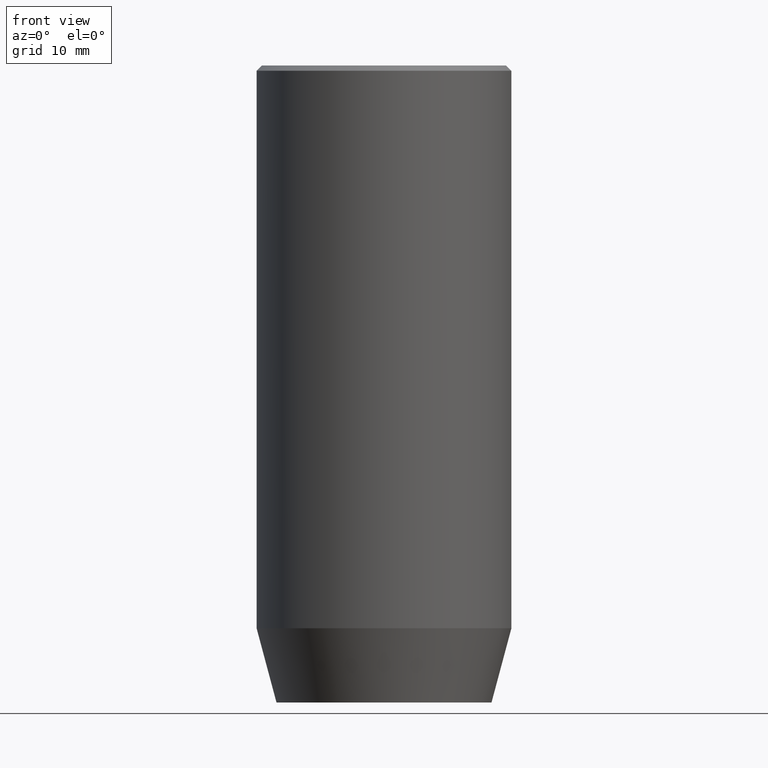
[diagram: clean part render]
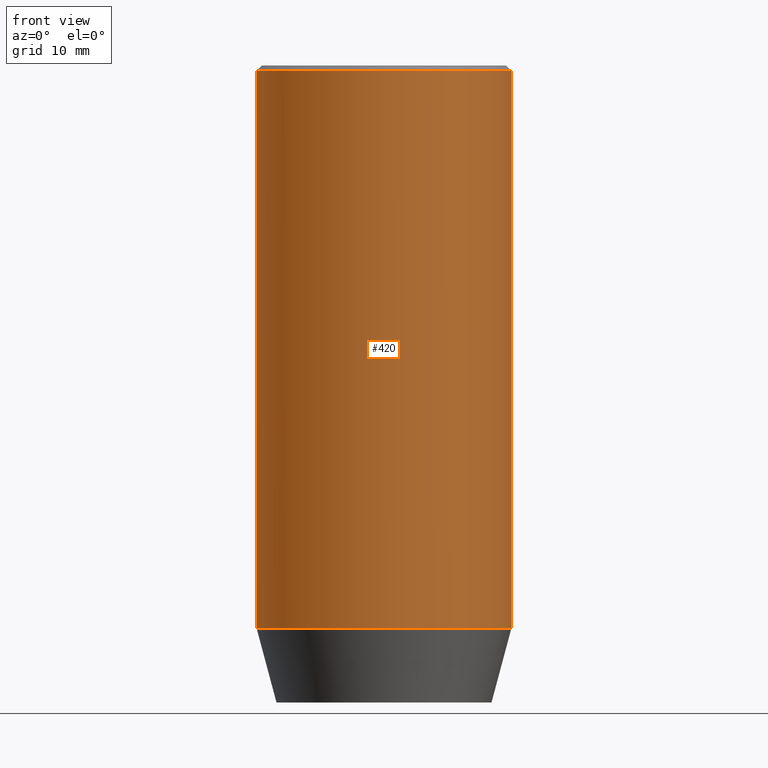
[diagram: same view with one face highlighted and labeled with its STEP entity id]
A machine part, front view. The second image highlights one B-rep face of the part: STEP entity #420.
In plain terms, the highlighted cylindrical surface (partial cylindrical patch) has radius 12 mm, axis along (-0, -0, 1).
Its self-contained STEP definition (entity closure, byte-faithful):
#3 = EDGE_CURVE ( 'NONE', #538, #533, #529, .T. ) ;
#10 = ORIENTED_EDGE ( 'NONE', *, *, #476, .T. ) ;
#29 = VECTOR ( 'NONE', #416, 1000.000000000000000 ) ;
#30 = CARTESIAN_POINT ( 'NONE',  ( -12.00000000000000000, 1.469576158976823947E-15, -53.00000000000000000 ) ) ;
#38 = CYLINDRICAL_SURFACE ( 'NONE', #211, 12.00000000000000000 ) ;
#41 = ORIENTED_EDGE ( 'NONE', *, *, #167, .T. ) ;
#43 = CARTESIAN_POINT ( 'NONE',  ( 12.00000000000000000, 0.000000000000000000, 0.000000000000000000 ) ) ;
#58 = DIRECTION ( 'NONE',  ( 1.000000000000000000, 0.000000000000000000, 0.000000000000000000 ) ) ;
#70 = DIRECTION ( 'NONE',  ( 1.000000000000000000, 0.000000000000000000, 0.000000000000000000 ) ) ;
#77 = AXIS2_PLACEMENT_3D ( 'NONE', #386, #203, #58 ) ;
#83 = FACE_OUTER_BOUND ( 'NONE', #397, .T. ) ;
#117 = DIRECTION ( 'NONE',  ( -0.000000000000000000, -0.000000000000000000, 1.000000000000000000 ) ) ;
#133 = CARTESIAN_POINT ( 'NONE',  ( -12.00000000000000000, 1.469576158976823947E-15, 0.000000000000000000 ) ) ;
#163 = DIRECTION ( 'NONE',  ( -0.000000000000000000, -0.000000000000000000, 1.000000000000000000 ) ) ;
#167 = EDGE_CURVE ( 'NONE', #433, #262, #327, .T. ) ;
#172 = AXIS2_PLACEMENT_3D ( 'NONE', #179, #539, #216 ) ;
#179 = CARTESIAN_POINT ( 'NONE',  ( 0.000000000000000000, 0.000000000000000000, -0.5000000000000125455 ) ) ;
#203 = DIRECTION ( 'NONE',  ( -0.000000000000000000, -0.000000000000000000, 1.000000000000000000 ) ) ;
#211 = AXIS2_PLACEMENT_3D ( 'NONE', #569, #163, #70 ) ;
#216 = DIRECTION ( 'NONE',  ( 1.000000000000000000, 0.000000000000000000, 0.000000000000000000 ) ) ;
#235 = ORIENTED_EDGE ( 'NONE', *, *, #274, .T. ) ;
#238 = CIRCLE ( 'NONE', #172, 12.00000000000000000 ) ;
#262 = VERTEX_POINT ( 'NONE', #288 ) ;
#274 = EDGE_CURVE ( 'NONE', #538, #433, #512, .T. ) ;
#288 = CARTESIAN_POINT ( 'NONE',  ( 12.00000000000000000, 0.000000000000000000, -0.5000000000000125455 ) ) ;
#327 = LINE ( 'NONE', #43, #29 ) ;
#386 = CARTESIAN_POINT ( 'NONE',  ( 0.000000000000000000, 0.000000000000000000, -53.00000000000000000 ) ) ;
#387 = VECTOR ( 'NONE', #117, 1000.000000000000000 ) ;
#397 = EDGE_LOOP ( 'NONE', ( #567, #235, #41, #10 ) ) ;
#416 = DIRECTION ( 'NONE',  ( -0.000000000000000000, -0.000000000000000000, 1.000000000000000000 ) ) ;
#420 = ADVANCED_FACE ( 'NONE', ( #83 ), #38, .T. ) ;
#433 = VERTEX_POINT ( 'NONE', #451 ) ;
#444 = CARTESIAN_POINT ( 'NONE',  ( -12.00000000000000000, 1.469576158976823947E-15, -0.5000000000000125455 ) ) ;
#451 = CARTESIAN_POINT ( 'NONE',  ( 12.00000000000000000, 0.000000000000000000, -53.00000000000000000 ) ) ;
#476 = EDGE_CURVE ( 'NONE', #262, #533, #238, .T. ) ;
#512 = CIRCLE ( 'NONE', #77, 12.00000000000000000 ) ;
#529 = LINE ( 'NONE', #133, #387 ) ;
#533 = VERTEX_POINT ( 'NONE', #444 ) ;
#538 = VERTEX_POINT ( 'NONE', #30 ) ;
#539 = DIRECTION ( 'NONE',  ( 0.000000000000000000, 0.000000000000000000, -1.000000000000000000 ) ) ;
#567 = ORIENTED_EDGE ( 'NONE', *, *, #3, .F. ) ;
#569 = CARTESIAN_POINT ( 'NONE',  ( 0.000000000000000000, 0.000000000000000000, 0.000000000000000000 ) ) ;